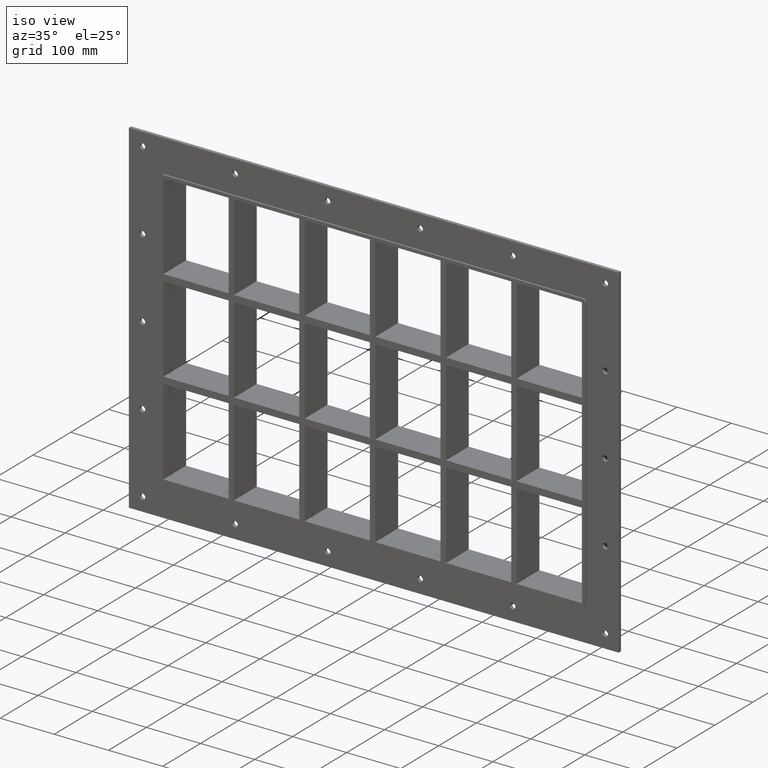
[diagram: clean part render]
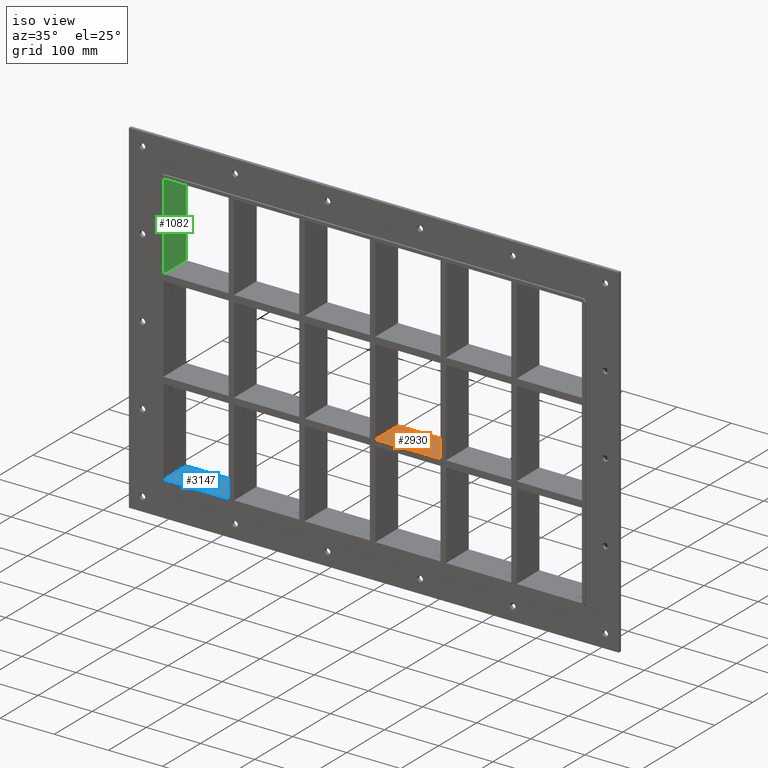
[diagram: same view with three faces highlighted in distinct colors, each labeled with its STEP entity id]
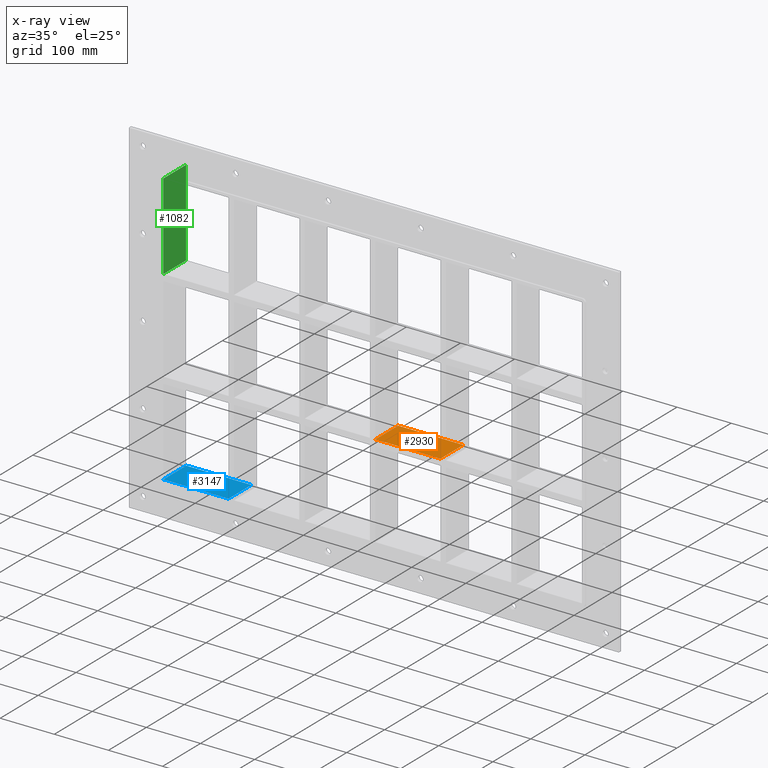
[diagram: x-ray of the same camera — body ghosted, the three highlighted faces saturated]
A machine part, iso view with three faces highlighted in distinct colors.
The next image is the same camera in x-ray (body ghosted, the three faces saturated) — at least one of them is partly hidden behind the body in this view.
Their STEP definitions:

[orange] entity #2930 — the highlighted planar face has unit normal (0, 0, 1).
#1678=CARTESIAN_POINT('',(4.999999999996376,57.0,-79.749999999999943));
#1679=VERTEX_POINT('',#1678);
#1686=CARTESIAN_POINT('',(125.49999999999795,57.0,-79.749999999999943));
#1687=VERTEX_POINT('',#1686);
#1688=CARTESIAN_POINT('',(4.999999999996419,57.0,-79.749999999999943));
#1689=DIRECTION('',(1.0,0.0,0.0));
#1690=VECTOR('',#1689,120.50000000000159);
#1691=LINE('',#1688,#1690);
#1692=EDGE_CURVE('',#1679,#1687,#1691,.T.);
#2085=CARTESIAN_POINT('',(125.49999999999795,-3.0,-79.749999999999943));
#2086=VERTEX_POINT('',#2085);
#2087=CARTESIAN_POINT('',(125.49999999999793,-3.0,-79.749999999999943));
#2088=DIRECTION('',(0.0,1.0,0.0));
#2089=VECTOR('',#2088,60.0);
#2090=LINE('',#2087,#2089);
#2091=EDGE_CURVE('',#2086,#1687,#2090,.T.);
#2249=CARTESIAN_POINT('',(4.999999999996376,-3.0,-79.749999999999943));
#2250=VERTEX_POINT('',#2249);
#2257=CARTESIAN_POINT('',(4.999999999996376,57.0,-79.749999999999943));
#2258=DIRECTION('',(0.0,-1.0,0.0));
#2259=VECTOR('',#2258,60.0);
#2260=LINE('',#2257,#2259);
#2261=EDGE_CURVE('',#1679,#2250,#2260,.T.);
#2616=CARTESIAN_POINT('',(4.999999999996419,-3.0,-79.749999999999943));
#2617=DIRECTION('',(1.0,0.0,0.0));
#2618=VECTOR('',#2617,120.50000000000159);
#2619=LINE('',#2616,#2618);
#2620=EDGE_CURVE('',#2250,#2086,#2619,.T.);
#2919=CARTESIAN_POINT('',(-386.50000000000045,-3.0,-79.749999999999943));
#2920=DIRECTION('',(0.0,0.0,1.0));
#2921=DIRECTION('',(1.0,0.0,0.0));
#2922=AXIS2_PLACEMENT_3D('',#2919,#2920,#2921);
#2923=PLANE('',#2922);
#2924=ORIENTED_EDGE('',*,*,#2091,.T.);
#2925=ORIENTED_EDGE('',*,*,#1692,.F.);
#2926=ORIENTED_EDGE('',*,*,#2261,.T.);
#2927=ORIENTED_EDGE('',*,*,#2620,.T.);
#2928=EDGE_LOOP('',(#2924,#2925,#2926,#2927));
#2929=FACE_OUTER_BOUND('',#2928,.T.);
#2930=ADVANCED_FACE('',(#2929),#2923,.T.);

[blue] entity #3147 — the highlighted planar face has unit normal (0, 0, -1).
#1754=CARTESIAN_POINT('',(-386.50000000000006,57.0,-251.25));
#1755=VERTEX_POINT('',#1754);
#1762=CARTESIAN_POINT('',(-266.00000000000205,57.0,-251.25));
#1763=VERTEX_POINT('',#1762);
#1764=CARTESIAN_POINT('',(-386.50000000000011,57.0,-251.25));
#1765=DIRECTION('',(1.0,0.0,0.0));
#1766=VECTOR('',#1765,120.49999999999807);
#1767=LINE('',#1764,#1766);
#1768=EDGE_CURVE('',#1755,#1763,#1767,.T.);
#2807=CARTESIAN_POINT('',(-266.00000000000205,-3.0,-251.25));
#2808=VERTEX_POINT('',#2807);
#2815=CARTESIAN_POINT('',(-386.50000000000006,-3.0,-251.25));
#2816=VERTEX_POINT('',#2815);
#2817=CARTESIAN_POINT('',(-266.00000000000205,-3.0,-251.25));
#2818=DIRECTION('',(-1.0,0.0,0.0));
#2819=VECTOR('',#2818,120.49999999999807);
#2820=LINE('',#2817,#2819);
#2821=EDGE_CURVE('',#2808,#2816,#2820,.T.);
#3109=CARTESIAN_POINT('',(-266.00000000000205,-3.0,-251.25));
#3110=DIRECTION('',(0.0,1.0,0.0));
#3111=VECTOR('',#3110,60.000000000000007);
#3112=LINE('',#3109,#3111);
#3113=EDGE_CURVE('',#2808,#1763,#3112,.T.);
#3131=CARTESIAN_POINT('',(386.50000000000006,0.0,-251.25));
#3132=DIRECTION('',(0.0,0.0,-1.0));
#3133=DIRECTION('',(-1.0,0.0,0.0));
#3134=AXIS2_PLACEMENT_3D('',#3131,#3132,#3133);
#3135=PLANE('',#3134);
#3136=ORIENTED_EDGE('',*,*,#3113,.T.);
#3137=ORIENTED_EDGE('',*,*,#1768,.F.);
#3138=CARTESIAN_POINT('',(-386.50000000000011,-3.0,-251.25));
#3139=DIRECTION('',(0.0,1.0,0.0));
#3140=VECTOR('',#3139,60.0);
#3141=LINE('',#3138,#3140);
#3142=EDGE_CURVE('',#2816,#1755,#3141,.T.);
#3143=ORIENTED_EDGE('',*,*,#3142,.F.);
#3144=ORIENTED_EDGE('',*,*,#2821,.F.);
#3145=EDGE_LOOP('',(#3136,#3137,#3143,#3144));
#3146=FACE_OUTER_BOUND('',#3145,.T.);
#3147=ADVANCED_FACE('',(#3146),#3135,.F.);

[green] entity #1082 — the highlighted planar face has unit normal (-1, 0, 0).
#827=CARTESIAN_POINT('',(-386.50000000000045,57.0,91.750000000000085));
#828=VERTEX_POINT('',#827);
#835=CARTESIAN_POINT('',(-386.50000000000045,-3.0,91.750000000000085));
#836=VERTEX_POINT('',#835);
#837=CARTESIAN_POINT('',(-386.50000000000011,-3.0,91.750000000000099));
#838=DIRECTION('',(0.0,1.0,0.0));
#839=VECTOR('',#838,60.000000000000007);
#840=LINE('',#837,#839);
#841=EDGE_CURVE('',#836,#828,#840,.T.);
#1052=CARTESIAN_POINT('',(-386.50000000000011,0.0,-251.25));
#1053=DIRECTION('',(-1.0,0.0,0.0));
#1054=DIRECTION('',(0.0,0.0,1.0));
#1055=AXIS2_PLACEMENT_3D('',#1052,#1053,#1054);
#1056=PLANE('',#1055);
#1057=ORIENTED_EDGE('',*,*,#841,.T.);
#1058=CARTESIAN_POINT('',(-386.50000000000006,57.0,251.25));
#1059=VERTEX_POINT('',#1058);
#1060=CARTESIAN_POINT('',(-386.50000000000011,57.0,251.25));
#1061=DIRECTION('',(0.0,0.0,-1.0));
#1062=VECTOR('',#1061,159.49999999999991);
#1063=LINE('',#1060,#1062);
#1064=EDGE_CURVE('',#1059,#828,#1063,.T.);
#1065=ORIENTED_EDGE('',*,*,#1064,.F.);
#1066=CARTESIAN_POINT('',(-386.50000000000006,-3.0,251.25));
#1067=VERTEX_POINT('',#1066);
#1068=CARTESIAN_POINT('',(-386.50000000000011,-3.0,251.25));
#1069=DIRECTION('',(0.0,1.0,0.0));
#1070=VECTOR('',#1069,60.0);
#1071=LINE('',#1068,#1070);
#1072=EDGE_CURVE('',#1067,#1059,#1071,.T.);
#1073=ORIENTED_EDGE('',*,*,#1072,.F.);
#1074=CARTESIAN_POINT('',(-386.50000000000011,-3.0,91.750000000000085));
#1075=DIRECTION('',(0.0,0.0,1.0));
#1076=VECTOR('',#1075,159.49999999999991);
#1077=LINE('',#1074,#1076);
#1078=EDGE_CURVE('',#836,#1067,#1077,.T.);
#1079=ORIENTED_EDGE('',*,*,#1078,.F.);
#1080=EDGE_LOOP('',(#1057,#1065,#1073,#1079));
#1081=FACE_OUTER_BOUND('',#1080,.T.);
#1082=ADVANCED_FACE('',(#1081),#1056,.F.);